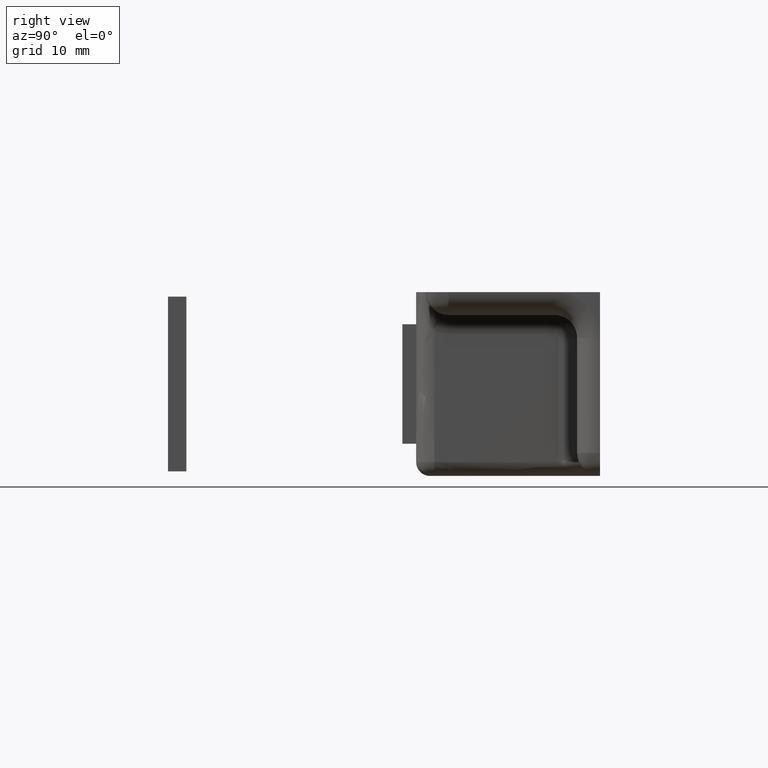
[diagram: clean part render]
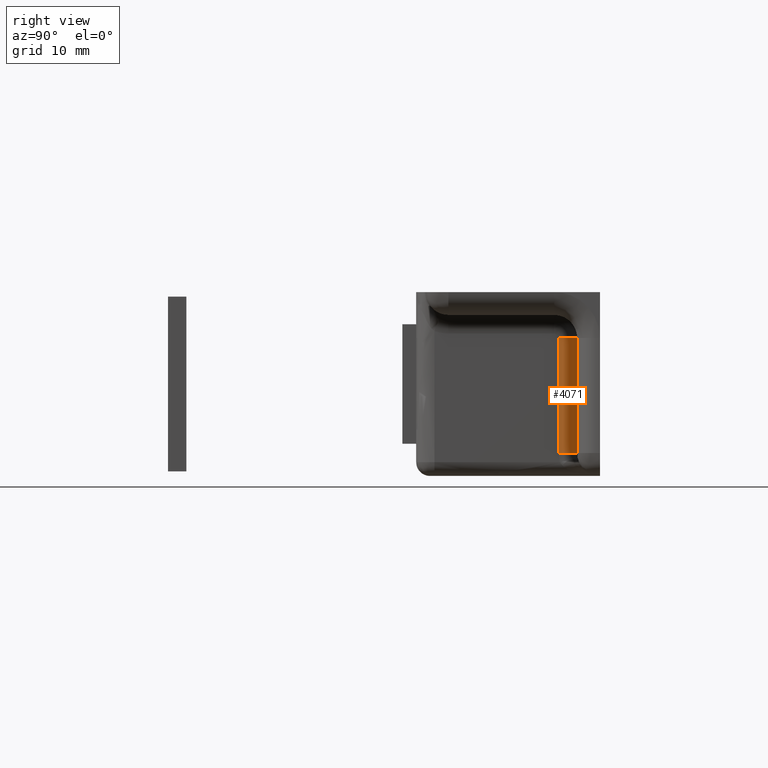
[diagram: same view with one face highlighted and labeled with its STEP entity id]
A machine part, right view. The second image highlights one B-rep face of the part: STEP entity #4071.
In plain terms, the highlighted face is a freeform B-spline surface patch.
Its self-contained STEP definition (entity closure, byte-faithful):
#3801=CARTESIAN_POINT('',(22.500000000000000,-2.500000000000000,4.999999999958390));
#3802=VERTEX_POINT('',#3801);
#3803=CARTESIAN_POINT('',(20.500000000000000,-4.499999999999949,4.999999999958390));
#3804=VERTEX_POINT('',#3803);
#3805=CARTESIAN_POINT('',(22.500000000000000,-2.500000000000000,4.999999999958390));
#3806=CARTESIAN_POINT('',(22.369103133993448,-2.499990206923425,4.999999999958397));
#3807=CARTESIAN_POINT('',(22.058206815327299,-2.530592616072763,4.999999999958382));
#3808=CARTESIAN_POINT('',(21.636628684540479,-2.675596785685337,4.999999999958397));
#3809=CARTESIAN_POINT('',(21.261603525375719,-2.913149986489998,4.999999999958382));
#3810=CARTESIAN_POINT('',(20.975819206258059,-3.185233291302297,4.999999999958397));
#3811=CARTESIAN_POINT('',(20.739136147217639,-3.521281614239272,4.999999999958384));
#3812=CARTESIAN_POINT('',(20.551011024546700,-3.960077567007339,4.999999999958404));
#3813=CARTESIAN_POINT('',(20.499924946381590,-4.303645127371579,4.999999999958374));
#3814=CARTESIAN_POINT('',(20.500000000000000,-4.499999999999949,4.999999999958390));
#3815=B_SPLINE_CURVE_WITH_KNOTS('',3,(#3805,#3806,#3807,#3808,#3809,#3810,#3811,#3812,#3813,#3814),.UNSPECIFIED.,.F.,.U.,(4,1,1,1,1,1,1,4),(-0.000001790352159,0.392704328969582,0.932687864630564,1.325408501114600,1.718089268351927,2.110801085061086,2.552614153997177,3.141670565403316),.UNSPECIFIED.);
#3816=EDGE_CURVE('',#3802,#3804,#3815,.T.);
#4027=CARTESIAN_POINT('',(22.517453070996751,-2.500076153871658,5.312499999958392));
#4028=CARTESIAN_POINT('',(22.517453070996751,-2.500076153871658,-7.820312500041721));
#4029=CARTESIAN_POINT('',(20.372797315976499,-2.481360026640909,5.312499999958393));
#4030=CARTESIAN_POINT('',(20.372797315976499,-2.481360026640909,-7.820312500041721));
#4031=CARTESIAN_POINT('',(20.503730403156268,-4.622097079069713,5.312499999958392));
#4032=CARTESIAN_POINT('',(20.503730403156268,-4.622097079069713,-7.820312500041721));
#4040=(BOUNDED_SURFACE()B_SPLINE_SURFACE(1,2,((#4027,#4029,#4031),(#4028,#4030,#4032)),.UNSPECIFIED.,.F.,.F.,.U.)B_SPLINE_SURFACE_WITH_KNOTS((2,2),(3,3),(0.0,13.132812500000110),(0.0,3.478498999687467),.UNSPECIFIED.)GEOMETRIC_REPRESENTATION_ITEM()RATIONAL_B_SPLINE_SURFACE(((1.0,0.681998360062499,1.0),(1.0,0.681998360062499,1.0)))REPRESENTATION_ITEM('')SURFACE());
#4041=CARTESIAN_POINT('',(22.500000000000000,-2.500000000000000,-7.500000000041720));
#4042=VERTEX_POINT('',#4041);
#4043=CARTESIAN_POINT('',(22.500000000000000,-2.500000000000000,4.999999999958390));
#4044=CARTESIAN_POINT('',(22.500000000000000,-2.500000000000000,-7.500000000041720));
#4045=QUASI_UNIFORM_CURVE('',1,(#4043,#4044),.UNSPECIFIED.,.F.,.U.);
#4046=EDGE_CURVE('',#3802,#4042,#4045,.T.);
#4047=ORIENTED_EDGE('',*,*,#4046,.F.);
#4048=ORIENTED_EDGE('',*,*,#3816,.T.);
#4049=CARTESIAN_POINT('',(20.500000000000000,-4.500000000000000,-7.500000000041720));
#4050=VERTEX_POINT('',#4049);
#4051=CARTESIAN_POINT('',(20.500000000000000,-4.500000000000000,-7.500000000041720));
#4052=CARTESIAN_POINT('',(20.500000000000000,-4.499999999999949,4.999999999958390));
#4053=QUASI_UNIFORM_CURVE('',1,(#4051,#4052),.UNSPECIFIED.,.F.,.U.);
#4054=EDGE_CURVE('',#4050,#3804,#4053,.T.);
#4055=ORIENTED_EDGE('',*,*,#4054,.F.);
#4056=CARTESIAN_POINT('',(22.500000000000000,-2.500000000000000,-7.500000000041720));
#4057=CARTESIAN_POINT('',(22.287273499482559,-2.499882915527274,-7.500000000041729));
#4058=CARTESIAN_POINT('',(21.943738134020251,-2.555359131408655,-7.500000000041704));
#4059=CARTESIAN_POINT('',(21.507842282337268,-2.748611099910462,-7.500000000041744));
#4060=CARTESIAN_POINT('',(21.185227824987461,-2.975822672459283,-7.500000000041682));
#4061=CARTESIAN_POINT('',(20.913139206057799,-3.261599239986032,-7.500000000041736));
#4062=CARTESIAN_POINT('',(20.728439039926339,-3.553308136937034,-7.500000000041739));
#4063=CARTESIAN_POINT('',(20.554008833334599,-3.960123911894040,-7.500000000041659));
#4064=CARTESIAN_POINT('',(20.499823427097681,-4.270896740753858,-7.500000000041741));
#4065=CARTESIAN_POINT('',(20.500000000000000,-4.500000000000000,-7.500000000041720));
#4066=B_SPLINE_CURVE_WITH_KNOTS('',3,(#4056,#4057,#4058,#4059,#4060,#4061,#4062,#4063,#4064,#4065),.UNSPECIFIED.,.F.,.U.,(4,1,1,1,1,1,1,4),(-0.000001790349853,0.638151293557663,1.030868728738478,1.423583662707693,1.816264354966395,2.208981580286178,2.454433513282950,3.141670565403306),.UNSPECIFIED.);
#4067=EDGE_CURVE('',#4042,#4050,#4066,.T.);
#4068=ORIENTED_EDGE('',*,*,#4067,.F.);
#4069=EDGE_LOOP('',(#4047,#4048,#4055,#4068));
#4070=FACE_OUTER_BOUND('',#4069,.T.);
#4071=ADVANCED_FACE('',(#4070),#4040,.F.);